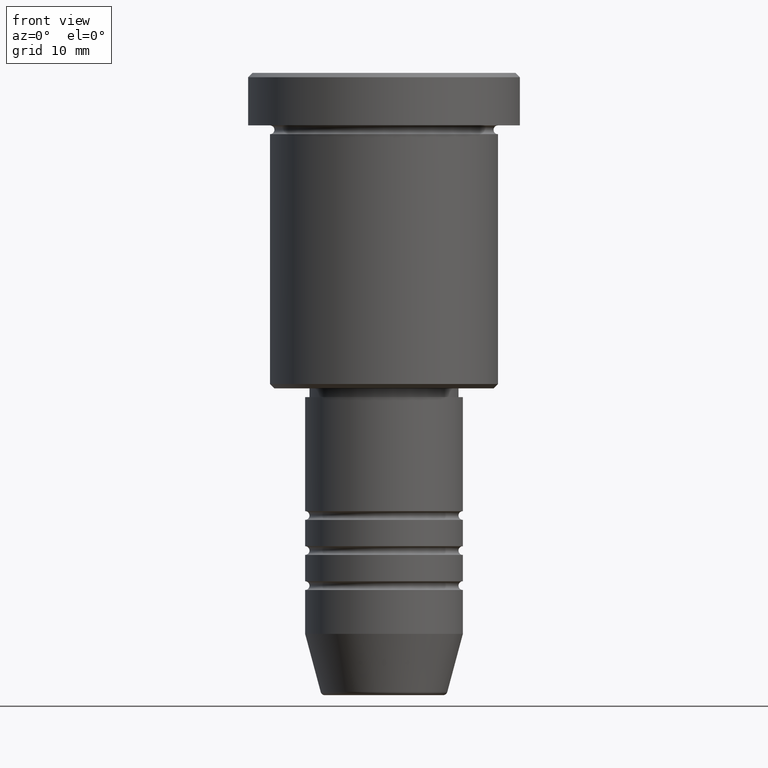
[diagram: clean part render]
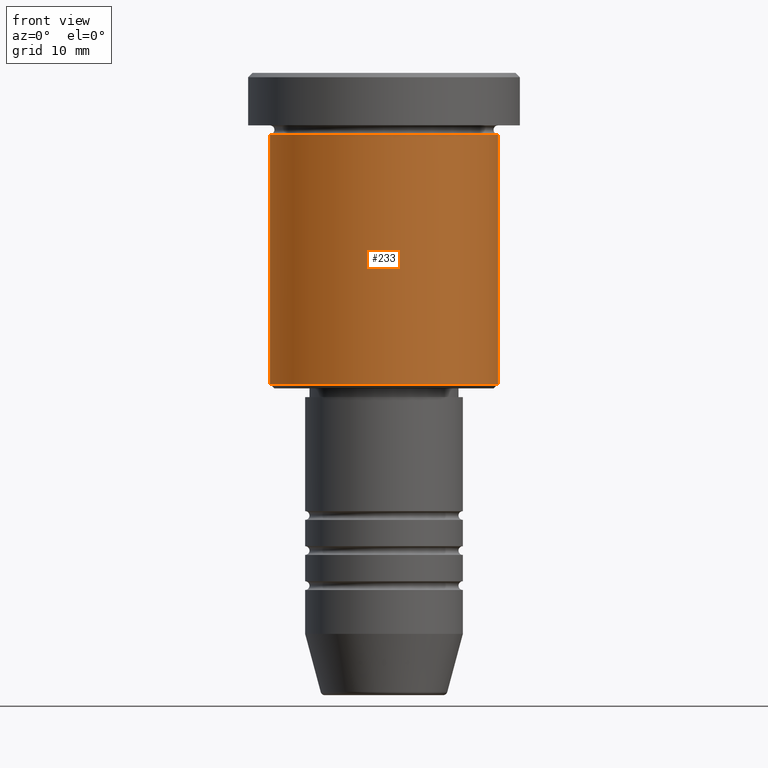
[diagram: same view with one face highlighted and labeled with its STEP entity id]
A machine part, front view. The second image highlights one B-rep face of the part: STEP entity #233.
In plain terms, the highlighted cylindrical surface (partial cylindrical patch) has radius 13 mm, axis along (-0, -0, 1).
Its self-contained STEP definition (entity closure, byte-faithful):
#100 = EDGE_CURVE ( 'NONE', #115, #865, #175, .T. ) ;
#102 = AXIS2_PLACEMENT_3D ( 'NONE', #1055, #322, #1063 ) ;
#115 = VERTEX_POINT ( 'NONE', #437 ) ;
#144 = AXIS2_PLACEMENT_3D ( 'NONE', #836, #747, #566 ) ;
#175 = LINE ( 'NONE', #1098, #411 ) ;
#230 = VERTEX_POINT ( 'NONE', #645 ) ;
#233 = ADVANCED_FACE ( 'NONE', ( #737 ), #556, .T. ) ;
#298 = AXIS2_PLACEMENT_3D ( 'NONE', #1005, #660, #726 ) ;
#313 = ORIENTED_EDGE ( 'NONE', *, *, #1075, .T. ) ;
#322 = DIRECTION ( 'NONE',  ( -0.000000000000000000, -0.000000000000000000, 1.000000000000000000 ) ) ;
#339 = CIRCLE ( 'NONE', #102, 13.00000000000000178 ) ;
#375 = EDGE_CURVE ( 'NONE', #1077, #230, #487, .T. ) ;
#399 = CARTESIAN_POINT ( 'NONE',  ( 13.00000000000000178, 0.000000000000000000, 0.000000000000000000 ) ) ;
#411 = VECTOR ( 'NONE', #457, 1000.000000000000000 ) ;
#437 = CARTESIAN_POINT ( 'NONE',  ( -13.00000000000000178, 1.592040838891559293E-15, -35.50000000000000711 ) ) ;
#457 = DIRECTION ( 'NONE',  ( -0.000000000000000000, -0.000000000000000000, 1.000000000000000000 ) ) ;
#475 = EDGE_LOOP ( 'NONE', ( #965, #313, #679, #884 ) ) ;
#487 = LINE ( 'NONE', #399, #531 ) ;
#514 = CARTESIAN_POINT ( 'NONE',  ( -13.00000000000000178, 1.592040838891559293E-15, -6.999999999999995559 ) ) ;
#531 = VECTOR ( 'NONE', #774, 1000.000000000000000 ) ;
#556 = CYLINDRICAL_SURFACE ( 'NONE', #298, 13.00000000000000178 ) ;
#566 = DIRECTION ( 'NONE',  ( -1.000000000000000000, 0.000000000000000000, 0.000000000000000000 ) ) ;
#576 = EDGE_CURVE ( 'NONE', #865, #230, #339, .T. ) ;
#645 = CARTESIAN_POINT ( 'NONE',  ( 13.00000000000000178, 0.000000000000000000, -6.999999999999995559 ) ) ;
#660 = DIRECTION ( 'NONE',  ( -0.000000000000000000, -0.000000000000000000, 1.000000000000000000 ) ) ;
#679 = ORIENTED_EDGE ( 'NONE', *, *, #375, .T. ) ;
#726 = DIRECTION ( 'NONE',  ( 1.000000000000000000, 0.000000000000000000, 0.000000000000000000 ) ) ;
#737 = FACE_OUTER_BOUND ( 'NONE', #475, .T. ) ;
#747 = DIRECTION ( 'NONE',  ( -0.000000000000000000, -0.000000000000000000, 1.000000000000000000 ) ) ;
#774 = DIRECTION ( 'NONE',  ( -0.000000000000000000, -0.000000000000000000, 1.000000000000000000 ) ) ;
#836 = CARTESIAN_POINT ( 'NONE',  ( 0.000000000000000000, 0.000000000000000000, -35.50000000000000711 ) ) ;
#865 = VERTEX_POINT ( 'NONE', #514 ) ;
#874 = CIRCLE ( 'NONE', #144, 13.00000000000000178 ) ;
#884 = ORIENTED_EDGE ( 'NONE', *, *, #576, .F. ) ;
#936 = CARTESIAN_POINT ( 'NONE',  ( 13.00000000000000178, 0.000000000000000000, -35.50000000000000711 ) ) ;
#965 = ORIENTED_EDGE ( 'NONE', *, *, #100, .F. ) ;
#1005 = CARTESIAN_POINT ( 'NONE',  ( 0.000000000000000000, 0.000000000000000000, 0.000000000000000000 ) ) ;
#1055 = CARTESIAN_POINT ( 'NONE',  ( 0.000000000000000000, 0.000000000000000000, -6.999999999999995559 ) ) ;
#1063 = DIRECTION ( 'NONE',  ( 1.000000000000000000, 0.000000000000000000, 0.000000000000000000 ) ) ;
#1075 = EDGE_CURVE ( 'NONE', #115, #1077, #874, .T. ) ;
#1077 = VERTEX_POINT ( 'NONE', #936 ) ;
#1098 = CARTESIAN_POINT ( 'NONE',  ( -13.00000000000000178, 1.592040838891559293E-15, 0.000000000000000000 ) ) ;